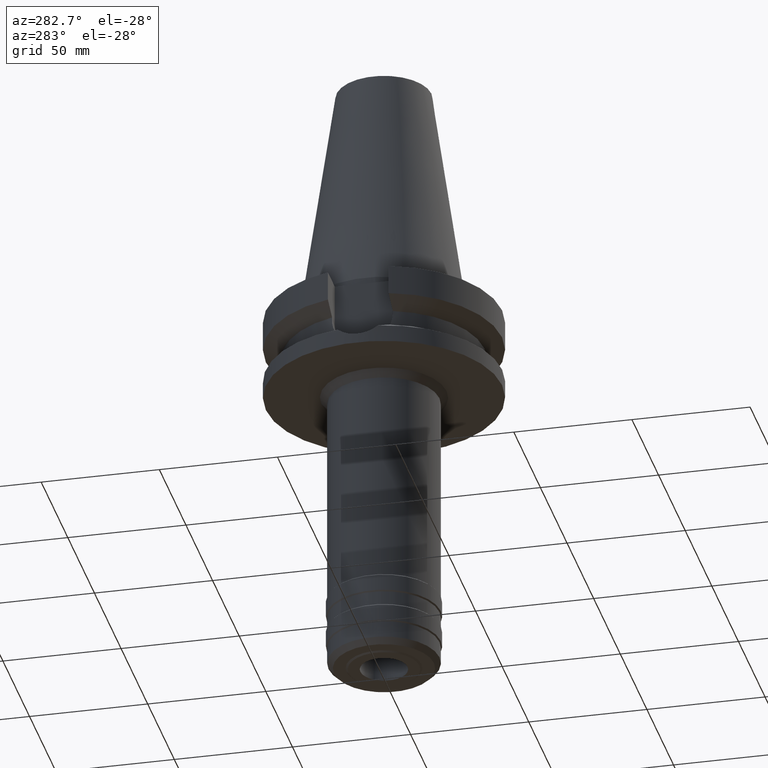
[diagram: clean part render]
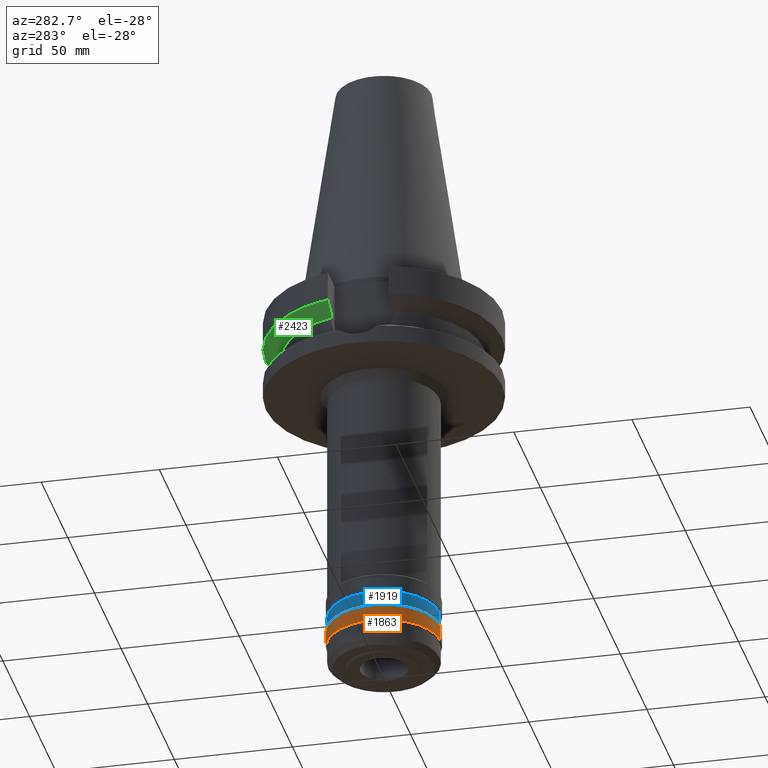
[diagram: same view with three faces highlighted in distinct colors, each labeled with its STEP entity id]
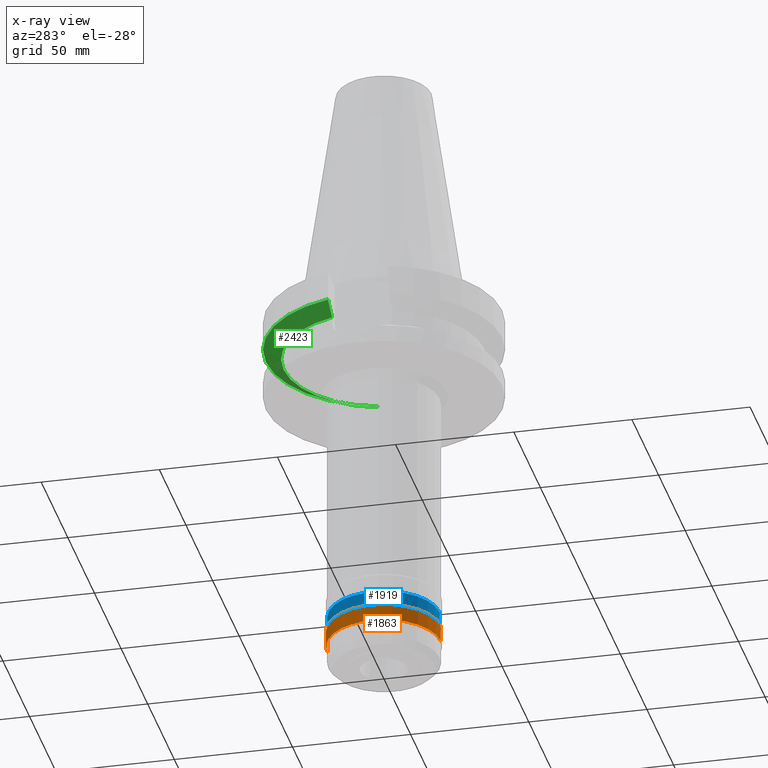
[diagram: x-ray of the same camera — body ghosted, the three highlighted faces saturated]
A machine part, auxiliary view with three faces highlighted in distinct colors.
The next image is the same camera in x-ray (body ghosted, the three faces saturated) — at least one of them is partly hidden behind the body in this view.
Their STEP definitions:

[orange] entity #1863 — the highlighted cylindrical surface (partial cylindrical patch) has radius 24 mm, axis along (0, 0, -1).
#391=CARTESIAN_POINT('',(0.E0,0.E0,-1.545E2));
#392=DIRECTION('',(0.E0,0.E0,1.E0));
#393=DIRECTION('',(0.E0,1.E0,0.E0));
#394=AXIS2_PLACEMENT_3D('',#391,#392,#393);
#414=DIRECTION('',(0.E0,0.E0,-1.E0));
#415=VECTOR('',#414,7.E0);
#416=CARTESIAN_POINT('',(0.E0,-2.4E1,-1.475E2));
#417=LINE('',#416,#415);
#421=DIRECTION('',(0.E0,0.E0,-1.E0));
#422=VECTOR('',#421,7.E0);
#423=CARTESIAN_POINT('',(0.E0,2.4E1,-1.475E2));
#424=LINE('',#423,#422);
#466=CARTESIAN_POINT('',(0.E0,0.E0,-1.475E2));
#467=DIRECTION('',(0.E0,0.E0,-1.E0));
#468=DIRECTION('',(0.E0,-1.E0,0.E0));
#469=AXIS2_PLACEMENT_3D('',#466,#467,#468);
#1342=CARTESIAN_POINT('',(0.E0,2.4E1,-1.545E2));
#1343=VERTEX_POINT('',#1342);
#1344=CARTESIAN_POINT('',(0.E0,-2.4E1,-1.545E2));
#1345=VERTEX_POINT('',#1344);
#1346=CARTESIAN_POINT('',(0.E0,2.4E1,-1.475E2));
#1347=VERTEX_POINT('',#1346);
#1348=CARTESIAN_POINT('',(0.E0,-2.4E1,-1.475E2));
#1349=VERTEX_POINT('',#1348);
#1849=CARTESIAN_POINT('',(0.E0,2.634705123686E-14,1.1514E2));
#1850=DIRECTION('',(0.E0,0.E0,-1.E0));
#1851=DIRECTION('',(0.E0,-1.E0,0.E0));
#1852=AXIS2_PLACEMENT_3D('',#1849,#1850,#1851);
#1853=CYLINDRICAL_SURFACE('',#1852,2.4E1);
#1855=ORIENTED_EDGE('',*,*,#1854,.F.);
#1857=ORIENTED_EDGE('',*,*,#1856,.F.);
#1859=ORIENTED_EDGE('',*,*,#1858,.T.);
#1860=ORIENTED_EDGE('',*,*,#1842,.F.);
#1861=EDGE_LOOP('',(#1855,#1857,#1859,#1860));
#1862=FACE_OUTER_BOUND('',#1861,.F.);
#395=CIRCLE('',#394,2.4E1);
#470=CIRCLE('',#469,2.4E1);
#1842=EDGE_CURVE('',#1343,#1345,#395,.T.);
#1854=EDGE_CURVE('',#1347,#1343,#424,.T.);
#1856=EDGE_CURVE('',#1349,#1347,#470,.T.);
#1858=EDGE_CURVE('',#1349,#1345,#417,.T.);
#1863=ADVANCED_FACE('',(#1862),#1853,.T.);

[blue] entity #1919 — the highlighted cylindrical surface (partial cylindrical patch) has radius 23.5 mm, axis along (0, 0, -1).
#451=CARTESIAN_POINT('',(0.E0,0.E0,-1.47E2));
#452=DIRECTION('',(0.E0,0.E0,1.E0));
#453=DIRECTION('',(0.E0,1.E0,0.E0));
#454=AXIS2_PLACEMENT_3D('',#451,#452,#453);
#474=DIRECTION('',(0.E0,0.E0,-1.E0));
#475=VECTOR('',#474,6.E0);
#476=CARTESIAN_POINT('',(0.E0,-2.35E1,-1.41E2));
#477=LINE('',#476,#475);
#481=DIRECTION('',(0.E0,0.E0,-1.E0));
#482=VECTOR('',#481,6.E0);
#483=CARTESIAN_POINT('',(0.E0,2.35E1,-1.41E2));
#484=LINE('',#483,#482);
#526=CARTESIAN_POINT('',(0.E0,0.E0,-1.41E2));
#527=DIRECTION('',(0.E0,0.E0,-1.E0));
#528=DIRECTION('',(0.E0,-1.E0,0.E0));
#529=AXIS2_PLACEMENT_3D('',#526,#527,#528);
#1350=CARTESIAN_POINT('',(0.E0,2.35E1,-1.47E2));
#1351=VERTEX_POINT('',#1350);
#1352=CARTESIAN_POINT('',(0.E0,-2.35E1,-1.47E2));
#1353=VERTEX_POINT('',#1352);
#1354=CARTESIAN_POINT('',(0.E0,2.35E1,-1.41E2));
#1355=VERTEX_POINT('',#1354);
#1356=CARTESIAN_POINT('',(0.E0,-2.35E1,-1.41E2));
#1357=VERTEX_POINT('',#1356);
#1905=CARTESIAN_POINT('',(0.E0,2.634705123686E-14,1.1514E2));
#1906=DIRECTION('',(0.E0,0.E0,-1.E0));
#1907=DIRECTION('',(0.E0,-1.E0,0.E0));
#1908=AXIS2_PLACEMENT_3D('',#1905,#1906,#1907);
#1909=CYLINDRICAL_SURFACE('',#1908,2.35E1);
#1911=ORIENTED_EDGE('',*,*,#1910,.F.);
#1913=ORIENTED_EDGE('',*,*,#1912,.F.);
#1915=ORIENTED_EDGE('',*,*,#1914,.T.);
#1916=ORIENTED_EDGE('',*,*,#1898,.F.);
#1917=EDGE_LOOP('',(#1911,#1913,#1915,#1916));
#1918=FACE_OUTER_BOUND('',#1917,.F.);
#455=CIRCLE('',#454,2.35E1);
#530=CIRCLE('',#529,2.35E1);
#1898=EDGE_CURVE('',#1351,#1353,#455,.T.);
#1910=EDGE_CURVE('',#1355,#1351,#484,.T.);
#1912=EDGE_CURVE('',#1357,#1355,#530,.T.);
#1914=EDGE_CURVE('',#1357,#1353,#477,.T.);
#1919=ADVANCED_FACE('',(#1918),#1909,.T.);

[green] entity #2423 — the highlighted conical surface has half-angle 60 deg.
#893=CARTESIAN_POINT('',(4.832056912815E1,1.285000385726E1,-1.566265768273E1));
#894=CARTESIAN_POINT('',(4.745408729214E1,1.285000385726E1,-1.614611802343E1));
#895=CARTESIAN_POINT('',(4.572065044666E1,1.284999774294E1,-1.711204883216E1));
#896=CARTESIAN_POINT('',(4.311729623625E1,1.285000211381E1,-1.855526471604E1));
#897=CARTESIAN_POINT('',(4.138011668009E1,1.284999657247E1,-1.951445436178E1));
#898=CARTESIAN_POINT('',(4.051083297203E1,1.284999657247E1,-1.999284555852E1));
#1146=CARTESIAN_POINT('',(-4.051083297141E1,1.284999657443E1,
-1.999284554354E1));
#1147=CARTESIAN_POINT('',(-4.138011667034E1,1.284999657443E1,
-1.951445435184E1));
#1148=CARTESIAN_POINT('',(-4.311729628375E1,1.285000211307E1,
-1.855526479721E1));
#1149=CARTESIAN_POINT('',(-4.572065049660E1,1.284999774261E1,
-1.711204891850E1));
#1150=CARTESIAN_POINT('',(-4.745408728479E1,1.285000385852E1,
-1.614611801600E1));
#1151=CARTESIAN_POINT('',(-4.832056912781E1,1.285000385852E1,
-1.566265767139E1));
#1156=CARTESIAN_POINT('',(0.E0,1.006319759054E-14,-1.999281925465E1));
#1157=DIRECTION('',(0.E0,0.E0,-1.E0));
#1158=DIRECTION('',(-9.531960443487E-1,3.023529411765E-1,0.E0));
#1159=AXIS2_PLACEMENT_3D('',#1156,#1157,#1158);
#1164=CARTESIAN_POINT('',(0.E0,1.006319759054E-14,-1.999281925465E1));
#1165=DIRECTION('',(0.E0,0.E0,-1.E0));
#1166=DIRECTION('',(0.E0,1.E0,0.E0));
#1167=AXIS2_PLACEMENT_3D('',#1164,#1165,#1166);
#1172=CARTESIAN_POINT('',(0.E0,1.006319759054E-14,-1.566269223573E1));
#1173=DIRECTION('',(0.E0,0.E0,1.E0));
#1174=DIRECTION('',(9.664114030784E-1,2.57E-1,0.E0));
#1175=AXIS2_PLACEMENT_3D('',#1172,#1173,#1174);
#1180=CARTESIAN_POINT('',(0.E0,1.006319759054E-14,-1.566269223573E1));
#1181=DIRECTION('',(0.E0,0.E0,1.E0));
#1182=DIRECTION('',(0.E0,1.E0,0.E0));
#1183=AXIS2_PLACEMENT_3D('',#1180,#1181,#1182);
#1423=CARTESIAN_POINT('',(4.051083297203E1,1.284999657247E1,-1.999284555852E1));
#1424=VERTEX_POINT('',#1423);
#1425=CARTESIAN_POINT('',(-4.051083188482E1,1.285E1,-1.999281925465E1));
#1426=CARTESIAN_POINT('',(0.E0,4.25E1,-1.999281925465E1));
#1427=VERTEX_POINT('',#1425);
#1428=VERTEX_POINT('',#1426);
#1463=VERTEX_POINT('',#1151);
#1468=VERTEX_POINT('',#893);
#1469=CARTESIAN_POINT('',(0.E0,5.E1,-1.566269223573E1));
#1470=VERTEX_POINT('',#1469);
#2408=CARTESIAN_POINT('',(0.E0,1.006319759054E-14,-1.782775574519E1));
#2409=DIRECTION('',(0.E0,0.E0,1.E0));
#2410=DIRECTION('',(0.E0,1.E0,0.E0));
#2411=AXIS2_PLACEMENT_3D('',#2408,#2409,#2410);
#2412=CONICAL_SURFACE('',#2411,4.625E1,6.E1);
#2413=ORIENTED_EDGE('',*,*,#2398,.F.);
#2414=ORIENTED_EDGE('',*,*,#2223,.T.);
#2415=ORIENTED_EDGE('',*,*,#2221,.T.);
#2416=ORIENTED_EDGE('',*,*,#2243,.F.);
#2418=ORIENTED_EDGE('',*,*,#2417,.T.);
#2420=ORIENTED_EDGE('',*,*,#2419,.T.);
#2421=EDGE_LOOP('',(#2413,#2414,#2415,#2416,#2418,#2420));
#2422=FACE_OUTER_BOUND('',#2421,.F.);
#899=B_SPLINE_CURVE_WITH_KNOTS('',3,(#893,#894,#895,#896,#897,#898),
.UNSPECIFIED.,.F.,.F.,(4,1,1,4),(0.E0,3.333333333333E-1,6.666666666667E-1,1.E0),
.UNSPECIFIED.);
#1152=B_SPLINE_CURVE_WITH_KNOTS('',3,(#1146,#1147,#1148,#1149,#1150,#1151),
.UNSPECIFIED.,.F.,.F.,(4,1,1,4),(0.E0,3.333333333333E-1,6.666666666667E-1,1.E0),
.UNSPECIFIED.);
#1160=CIRCLE('',#1159,4.25E1);
#1168=CIRCLE('',#1167,4.25E1);
#1176=CIRCLE('',#1175,5.E1);
#1184=CIRCLE('',#1183,5.E1);
#2221=EDGE_CURVE('',#1428,#1424,#1168,.T.);
#2223=EDGE_CURVE('',#1427,#1428,#1160,.T.);
#2243=EDGE_CURVE('',#1468,#1424,#899,.T.);
#2398=EDGE_CURVE('',#1427,#1463,#1152,.T.);
#2417=EDGE_CURVE('',#1468,#1470,#1176,.T.);
#2419=EDGE_CURVE('',#1470,#1463,#1184,.T.);
#2423=ADVANCED_FACE('',(#2422),#2412,.T.);